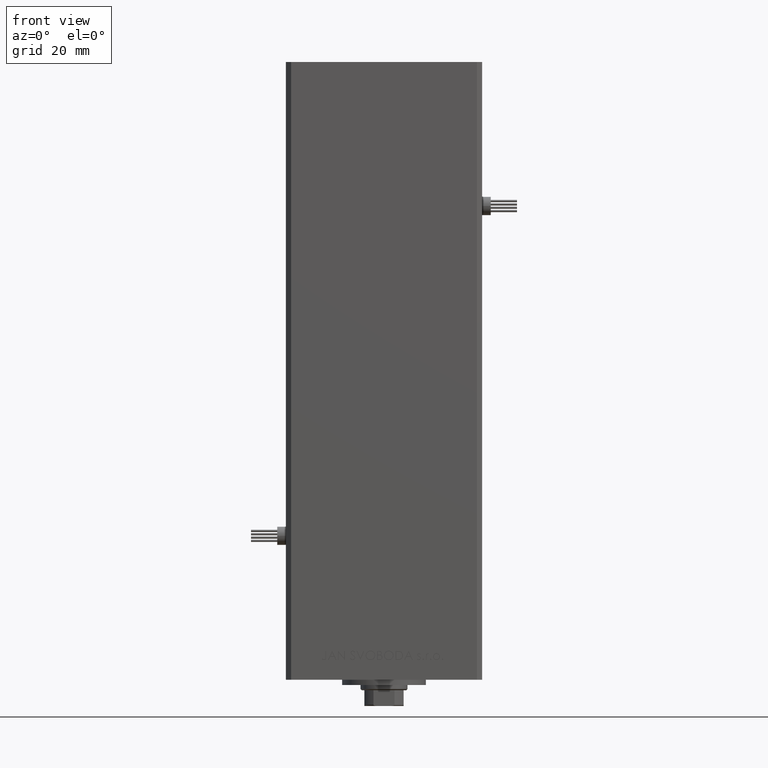
[diagram: clean part render]
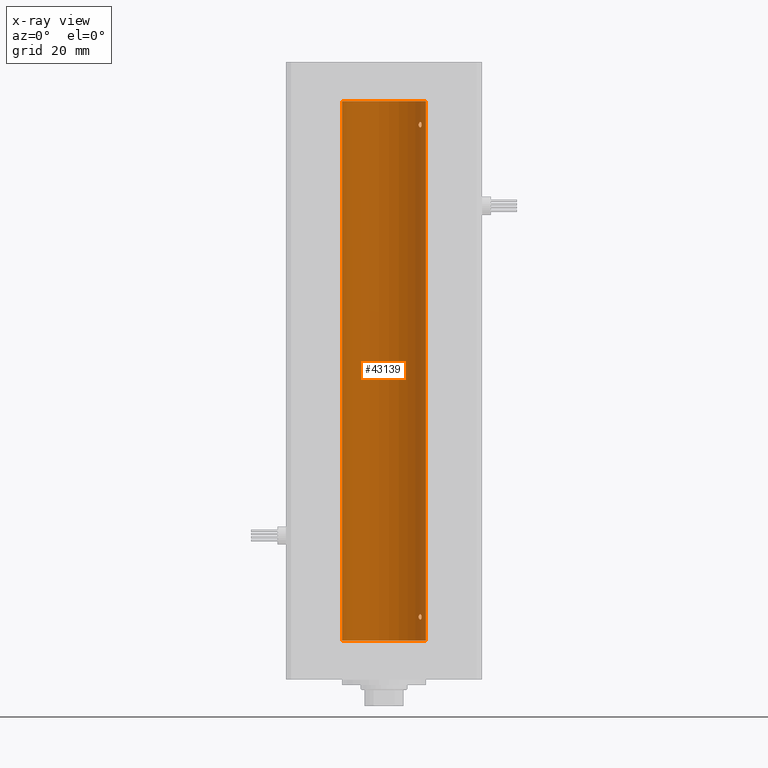
[diagram: x-ray — body ghosted, one internal face saturated and labeled with its STEP entity id]
A machine part, front view, then the same camera in x-ray: the body is ghosted and one INTERNAL B-rep face — a face not visible from any outside direction — is saturated and labeled: STEP entity #43139.
In plain terms, the highlighted cylindrical surface (partial cylindrical patch) has radius 16 mm, axis along (-0, -0, -1).
Its self-contained STEP definition (entity closure, byte-faithful):
#55 = CARTESIAN_POINT ( 'NONE',  ( 16.00000000000000000, 1.959434878635765131E-15, 0.000000000000000000 ) ) ;
#404 = CARTESIAN_POINT ( 'NONE',  ( 14.31615587311060445, 7.145052533203043232, 8.462698705274526390 ) ) ;
#1209 = FACE_BOUND ( 'NONE', #42346, .T. ) ;
#1561 = AXIS2_PLACEMENT_3D ( 'NONE', #18261, #51052, #18780 ) ;
#1714 = B_SPLINE_CURVE_WITH_KNOTS ( 'NONE', 3,
 ( #40359, #44855, #48561, #9146, #28485, #16820, #32965, #20255, #45130, #21065, #37193, #36397, #24496, #17087 ),
 .UNSPECIFIED., .F., .F.,
 ( 4, 2, 2, 2, 2, 2, 4 ),
 ( 0.003377516961122441295, 0.003798778705083836419, 0.004220040449045231977, 0.005062563936968072532, 0.005905087424890913088, 0.006326349168852335100, 0.006747610912813756245 ),
 .UNSPECIFIED. ) ;
#2257 = CARTESIAN_POINT ( 'NONE',  ( 13.22875655532295447, 8.999999999999996447, 196.9999999999999432 ) ) ;
#2437 = VERTEX_POINT ( 'NONE', #29260 ) ;
#2468 = CARTESIAN_POINT ( 'NONE',  ( 13.92009581174527355, 7.889943515799701323, 195.9984609092137759 ) ) ;
#3027 = ORIENTED_EDGE ( 'NONE', *, *, #30645, .T. ) ;
#3412 = ORIENTED_EDGE ( 'NONE', *, *, #9447, .F. ) ;
#4275 = CARTESIAN_POINT ( 'NONE',  ( 14.27574973237574874, 7.225997637813491359, 196.3530782107463324 ) ) ;
#4353 = CARTESIAN_POINT ( 'NONE',  ( 14.38749456993875953, 6.999999999998769873, 8.999999999999467093 ) ) ;
#4964 = VERTEX_POINT ( 'NONE', #34005 ) ;
#6119 = CARTESIAN_POINT ( 'NONE',  ( 14.38749456993835807, 6.999999999999894307, 9.141106977037484427 ) ) ;
#6761 = CARTESIAN_POINT ( 'NONE',  ( 13.32443414199768839, 8.857985377928104143, 8.468605830316136007 ) ) ;
#6893 = CARTESIAN_POINT ( 'NONE',  ( 13.25022586032984329, 8.968609469449802418, 9.283289638962903823 ) ) ;
#6912 = VECTOR ( 'NONE', #40449, 1000.000000000000000 ) ;
#7406 = CARTESIAN_POINT ( 'NONE',  ( 13.32447566991143439, 8.857922402414480700, 9.531438119903825168 ) ) ;
#7463 = CARTESIAN_POINT ( 'NONE',  ( 14.38749456993829057, 7.000000000000029310, 196.9292911095188003 ) ) ;
#8289 = VERTEX_POINT ( 'NONE', #26202 ) ;
#8587 = CARTESIAN_POINT ( 'NONE',  ( 13.98799506618804855, 7.768796316246572964, 8.018907818619863903 ) ) ;
#8857 = CARTESIAN_POINT ( 'NONE',  ( 13.77746685470184040, 8.136441676695669756, 8.001713142955473757 ) ) ;
#9146 = CARTESIAN_POINT ( 'NONE',  ( 14.31678893103185679, 7.143775209822727845, 197.5347800480706155 ) ) ;
#9447 = EDGE_CURVE ( 'NONE', #36479, #2437, #26099, .T. ) ;
#9669 = FACE_OUTER_BOUND ( 'NONE', #44934, .T. ) ;
#9927 = DIRECTION ( 'NONE',  ( -1.000000000000000000, 0.000000000000000000, 0.000000000000000000 ) ) ;
#10860 = CARTESIAN_POINT ( 'NONE',  ( 13.22875655532295625, 9.000000000000000000, 9.142659515501296852 ) ) ;
#10996 = CARTESIAN_POINT ( 'NONE',  ( 13.22875655532295447, 8.999999999999998224, 8.999999999999994671 ) ) ;
#12563 = CARTESIAN_POINT ( 'NONE',  ( 13.49787029139620920, 8.591848682074017418, 8.183814587142569152 ) ) ;
#12829 = CARTESIAN_POINT ( 'NONE',  ( 14.35867515080208356, 7.058999333127636611, 8.654421198538130966 ) ) ;
#14465 = CARTESIAN_POINT ( 'NONE',  ( -16.00000000000000000, 0.000000000000000000, 206.0000000000000000 ) ) ;
#16129 = EDGE_CURVE ( 'NONE', #4964, #36479, #28050, .T. ) ;
#16622 = AXIS2_PLACEMENT_3D ( 'NONE', #45252, #33603, #16940 ) ;
#16820 = CARTESIAN_POINT ( 'NONE',  ( 14.12440581436492515, 7.519967855344591001, 197.9168456675479604 ) ) ;
#16940 = DIRECTION ( 'NONE',  ( 1.000000000000000000, 0.000000000000000000, 0.000000000000000000 ) ) ;
#17079 = CYLINDRICAL_SURFACE ( 'NONE', #44045, 16.00000000000000000 ) ;
#17087 = CARTESIAN_POINT ( 'NONE',  ( 13.22875655532295447, 8.999999999999996447, 196.9999999999999432 ) ) ;
#17455 = CIRCLE ( 'NONE', #16622, 16.00000000000000000 ) ;
#17864 = CARTESIAN_POINT ( 'NONE',  ( 0.000000000000000000, 0.000000000000000000, 206.0000000000000000 ) ) ;
#18261 = CARTESIAN_POINT ( 'NONE',  ( 0.000000000000000000, 0.000000000000000000, 0.000000000000000000 ) ) ;
#18345 = CARTESIAN_POINT ( 'NONE',  ( 13.37714181818050641, 8.778635597591444295, 196.3595547667462711 ) ) ;
#18599 = CARTESIAN_POINT ( 'NONE',  ( 13.98799506618805211, 7.768796316246563194, 196.0189078186198515 ) ) ;
#18780 = DIRECTION ( 'NONE',  ( 1.000000000000000000, 0.000000000000000000, 0.000000000000000000 ) ) ;
#19582 = CARTESIAN_POINT ( 'NONE',  ( 13.98853479819183043, 7.771757428685174496, 10.00365939203466681 ) ) ;
#19980 = CARTESIAN_POINT ( 'NONE',  ( 14.38374727663542707, 7.007716049903074840, 8.857607929436484895 ) ) ;
#20177 = CARTESIAN_POINT ( 'NONE',  ( 14.38749456993875953, 6.999999999998769873, 8.999999999999467093 ) ) ;
#20255 = CARTESIAN_POINT ( 'NONE',  ( 13.70635209652259334, 8.259251269739747769, 197.9961002086728001 ) ) ;
#20422 = CARTESIAN_POINT ( 'NONE',  ( 14.31615587311060978, 7.145052533203036127, 196.4626987052745903 ) ) ;
#21039 = CARTESIAN_POINT ( 'NONE',  ( 14.17516445690067428, 7.421373518623910037, 8.173695665549439937 ) ) ;
#21065 = CARTESIAN_POINT ( 'NONE',  ( 13.37722806521492203, 8.778496895713763237, 197.6404922157021247 ) ) ;
#21155 = CARTESIAN_POINT ( 'NONE',  ( 16.00000000000000000, 1.959434878635765131E-15, 206.0000000000000000 ) ) ;
#21315 = ORIENTED_EDGE ( 'NONE', *, *, #16129, .F. ) ;
#21348 = VERTEX_POINT ( 'NONE', #14465 ) ;
#22278 = CARTESIAN_POINT ( 'NONE',  ( 14.37260515874679534, 7.030802976542521954, 9.282431798581109561 ) ) ;
#22340 = CARTESIAN_POINT ( 'NONE',  ( 13.32443414199769194, 8.857985377928093484, 196.4686058303161076 ) ) ;
#22536 = CARTESIAN_POINT ( 'NONE',  ( 14.12440581436493225, 7.519967855344579455, 9.916845667547992349 ) ) ;
#22595 = CARTESIAN_POINT ( 'NONE',  ( 13.70633586603035781, 8.255576010093792050, 196.0253286105014752 ) ) ;
#23123 = CARTESIAN_POINT ( 'NONE',  ( 13.22875655532295802, 8.999999999999998224, 196.8570262609357258 ) ) ;
#23380 = CARTESIAN_POINT ( 'NONE',  ( 14.17516445690067250, 7.421373518623910037, 196.1736956655493884 ) ) ;
#24396 = CARTESIAN_POINT ( 'NONE',  ( 14.36932461189096877, 7.037242368448795915, 196.7207139776694191 ) ) ;
#24496 = CARTESIAN_POINT ( 'NONE',  ( 13.22875655532295092, 8.999999999999994671, 197.1426595155012365 ) ) ;
#25348 = CARTESIAN_POINT ( 'NONE',  ( -16.00000000000000000, 0.000000000000000000, 206.0000000000000000 ) ) ;
#25453 = CARTESIAN_POINT ( 'NONE',  ( 14.38749456993875953, 6.999999999998769873, 8.999999999999467093 ) ) ;
#25457 = B_SPLINE_CURVE_WITH_KNOTS ( 'NONE', 3,
 ( #38972, #23123, #42685, #22340, #18345, #30543, #46647, #22595, #38708, #2468, #18599, #40513, #23380, #4275, #20422, #51914, #24396, #39493, #7463, #47420 ),
 .UNSPECIFIED., .F., .F.,
 ( 4, 2, 2, 2, 2, 2, 2, 2, 2, 4 ),
 ( 2.818592028051833686E-17, 0.0004221896201403299359, 0.0008443792402806316825, 0.001266568860420933538, 0.001688758480561235176, 0.002110948100701536597, 0.002533137720841838886, 0.002955327340982140307, 0.003166422151052290801, 0.003377516961122441295 ),
 .UNSPECIFIED. ) ;
#25880 = LINE ( 'NONE', #25348, #42339 ) ;
#25981 = B_SPLINE_CURVE_WITH_KNOTS ( 'NONE', 3,
 ( #10996, #51220, #27161, #6761, #36650, #12563, #45106, #32153, #8857, #52243, #8587, #32681, #21039, #33207, #404, #12829, #32426, #19980, #29255, #4353 ),
 .UNSPECIFIED., .F., .F.,
 ( 4, 2, 2, 2, 2, 2, 2, 2, 2, 4 ),
 ( 0.000000000000000000, 0.0004221896201403055413, 0.0008443792402806110826, 0.001266568860420916624, 0.001688758480561222165, 0.002110948100701527490, 0.002533137720841833248, 0.002955327340982138572, 0.003166422151052288633, 0.003377516961122438259 ),
 .UNSPECIFIED. ) ;
#26099 = CIRCLE ( 'NONE', #1561, 16.00000000000000000 ) ;
#26202 = CARTESIAN_POINT ( 'NONE',  ( 13.22875655532295447, 8.999999999999998224, 8.999999999999994671 ) ) ;
#26522 = CARTESIAN_POINT ( 'NONE',  ( 14.27601081693604712, 7.225489892961965310, 9.646446674983275571 ) ) ;
#26799 = EDGE_CURVE ( 'NONE', #8289, #27691, #25981, .T. ) ;
#27121 = ORIENTED_EDGE ( 'NONE', *, *, #49550, .F. ) ;
#27161 = CARTESIAN_POINT ( 'NONE',  ( 13.25010819131475159, 8.968783812673564171, 8.717198662283735189 ) ) ;
#27290 = CARTESIAN_POINT ( 'NONE',  ( 13.37722806521492025, 8.778496895713756132, 9.640492215702138878 ) ) ;
#27691 = VERTEX_POINT ( 'NONE', #20177 ) ;
#28050 = LINE ( 'NONE', #21155, #6912 ) ;
#28485 = CARTESIAN_POINT ( 'NONE',  ( 14.27601081693604179, 7.225489892961972416, 197.6464466749832525 ) ) ;
#29255 = CARTESIAN_POINT ( 'NONE',  ( 14.38749456993828879, 7.000000000000026645, 8.929291109518763037 ) ) ;
#29260 = CARTESIAN_POINT ( 'NONE',  ( -16.00000000000000000, 0.000000000000000000, 0.000000000000000000 ) ) ;
#30543 = CARTESIAN_POINT ( 'NONE',  ( 13.49787029139622696, 8.591848682073997878, 196.1838145871425638 ) ) ;
#30645 = EDGE_CURVE ( 'NONE', #4964, #21348, #17455, .T. ) ;
#31234 = EDGE_CURVE ( 'NONE', #48759, #43275, #1714, .T. ) ;
#32153 = CARTESIAN_POINT ( 'NONE',  ( 13.70633586603034715, 8.255576010093811590, 8.025328610501505366 ) ) ;
#32426 = CARTESIAN_POINT ( 'NONE',  ( 14.36932461189096877, 7.037242368448794139, 8.720713977669424466 ) ) ;
#32588 = CARTESIAN_POINT ( 'NONE',  ( 14.38749456993875775, 6.999999999998771649, 196.9999999999994600 ) ) ;
#32681 = CARTESIAN_POINT ( 'NONE',  ( 14.11701305531884287, 7.531808851198022126, 8.107366783090686368 ) ) ;
#32965 = CARTESIAN_POINT ( 'NONE',  ( 13.98853479819182866, 7.771757428685186042, 198.0036593920346775 ) ) ;
#33207 = CARTESIAN_POINT ( 'NONE',  ( 14.27574973237574696, 7.225997637813494023, 8.353078210746339494 ) ) ;
#33603 = DIRECTION ( 'NONE',  ( -0.000000000000000000, 0.000000000000000000, 1.000000000000000000 ) ) ;
#34004 = FACE_BOUND ( 'NONE', #52117, .T. ) ;
#34005 = CARTESIAN_POINT ( 'NONE',  ( 16.00000000000000000, 1.959434878635765131E-15, 206.0000000000000000 ) ) ;
#34515 = ORIENTED_EDGE ( 'NONE', *, *, #42719, .T. ) ;
#34776 = ORIENTED_EDGE ( 'NONE', *, *, #31234, .F. ) ;
#34929 = ORIENTED_EDGE ( 'NONE', *, *, #42084, .F. ) ;
#36397 = CARTESIAN_POINT ( 'NONE',  ( 13.25022586032983618, 8.968609469449805971, 197.2832896389629127 ) ) ;
#36436 = ORIENTED_EDGE ( 'NONE', *, *, #26799, .F. ) ;
#36479 = VERTEX_POINT ( 'NONE', #55 ) ;
#36650 = CARTESIAN_POINT ( 'NONE',  ( 13.37714181818049575, 8.778635597591465611, 8.359554766746297716 ) ) ;
#37193 = CARTESIAN_POINT ( 'NONE',  ( 13.32447566991143617, 8.857922402414489582, 197.5314381199037541 ) ) ;
#38708 = CARTESIAN_POINT ( 'NONE',  ( 13.77746685470184929, 8.136441676695655545, 196.0017131429554524 ) ) ;
#38972 = CARTESIAN_POINT ( 'NONE',  ( 13.22875655532295447, 8.999999999999996447, 196.9999999999999432 ) ) ;
#39493 = CARTESIAN_POINT ( 'NONE',  ( 14.38374727663542707, 7.007716049903077504, 196.8576079294364547 ) ) ;
#40359 = CARTESIAN_POINT ( 'NONE',  ( 14.38749456993875775, 6.999999999998771649, 196.9999999999994600 ) ) ;
#40449 = DIRECTION ( 'NONE',  ( -0.000000000000000000, -0.000000000000000000, -1.000000000000000000 ) ) ;
#40513 = CARTESIAN_POINT ( 'NONE',  ( 14.11701305531884465, 7.531808851198014132, 196.1073667830906402 ) ) ;
#41348 = B_SPLINE_CURVE_WITH_KNOTS ( 'NONE', 3,
 ( #25453, #6119, #22278, #41579, #26522, #22536, #19582, #51080, #52112, #27290, #7406, #6893, #10860, #42880 ),
 .UNSPECIFIED., .F., .F.,
 ( 4, 2, 2, 2, 2, 2, 4 ),
 ( 0.003377516961122438259, 0.003798778705083848996, 0.004220040449045259733, 0.005062563936968083808, 0.005905087424890908751, 0.006326349168852319488, 0.006747610912813730225 ),
 .UNSPECIFIED. ) ;
#41579 = CARTESIAN_POINT ( 'NONE',  ( 14.31678893103186390, 7.143775209822729622, 9.534780048070684799 ) ) ;
#41739 = DIRECTION ( 'NONE',  ( -0.000000000000000000, -0.000000000000000000, -1.000000000000000000 ) ) ;
#42084 = EDGE_CURVE ( 'NONE', #27691, #8289, #41348, .T. ) ;
#42339 = VECTOR ( 'NONE', #41739, 1000.000000000000000 ) ;
#42346 = EDGE_LOOP ( 'NONE', ( #36436, #34929 ) ) ;
#42685 = CARTESIAN_POINT ( 'NONE',  ( 13.25010819131476048, 8.968783812673557065, 196.7171986622837210 ) ) ;
#42719 = EDGE_CURVE ( 'NONE', #21348, #2437, #25880, .T. ) ;
#42880 = CARTESIAN_POINT ( 'NONE',  ( 13.22875655532295447, 8.999999999999998224, 8.999999999999994671 ) ) ;
#43139 = ADVANCED_FACE ( 'NONE', ( #9669, #34004, #1209 ), #17079, .F. ) ;
#43275 = VERTEX_POINT ( 'NONE', #2257 ) ;
#44045 = AXIS2_PLACEMENT_3D ( 'NONE', #17864, #49345, #9927 ) ;
#44855 = CARTESIAN_POINT ( 'NONE',  ( 14.38749456993835807, 6.999999999999900524, 197.1411069770375093 ) ) ;
#44934 = EDGE_LOOP ( 'NONE', ( #21315, #3027, #34515, #3412 ) ) ;
#45106 = CARTESIAN_POINT ( 'NONE',  ( 13.56526576050683452, 8.485384079562178883, 8.116990538131117816 ) ) ;
#45130 = CARTESIAN_POINT ( 'NONE',  ( 13.55739033881264710, 8.499771822136690247, 197.9029833364132855 ) ) ;
#45252 = CARTESIAN_POINT ( 'NONE',  ( 0.000000000000000000, 0.000000000000000000, 206.0000000000000000 ) ) ;
#46647 = CARTESIAN_POINT ( 'NONE',  ( 13.56526576050684518, 8.485384079562161119, 196.1169905381311196 ) ) ;
#47420 = CARTESIAN_POINT ( 'NONE',  ( 14.38749456993875775, 6.999999999998771649, 196.9999999999994600 ) ) ;
#48561 = CARTESIAN_POINT ( 'NONE',  ( 14.37260515874679179, 7.030802976542521954, 197.2824317985810865 ) ) ;
#48759 = VERTEX_POINT ( 'NONE', #32588 ) ;
#49345 = DIRECTION ( 'NONE',  ( -0.000000000000000000, -0.000000000000000000, -1.000000000000000000 ) ) ;
#49550 = EDGE_CURVE ( 'NONE', #43275, #48759, #25457, .T. ) ;
#51052 = DIRECTION ( 'NONE',  ( -0.000000000000000000, 0.000000000000000000, 1.000000000000000000 ) ) ;
#51080 = CARTESIAN_POINT ( 'NONE',  ( 13.70635209652260222, 8.259251269739738888, 9.996100208672867637 ) ) ;
#51220 = CARTESIAN_POINT ( 'NONE',  ( 13.22875655532296157, 9.000000000000000000, 8.857026260935734641 ) ) ;
#51914 = CARTESIAN_POINT ( 'NONE',  ( 14.35867515080208712, 7.058999333127631282, 196.6544211985381594 ) ) ;
#52112 = CARTESIAN_POINT ( 'NONE',  ( 13.55739033881265065, 8.499771822136686694, 9.902983336413296200 ) ) ;
#52117 = EDGE_LOOP ( 'NONE', ( #27121, #34776 ) ) ;
#52243 = CARTESIAN_POINT ( 'NONE',  ( 13.92009581174526822, 7.889943515799717311, 7.998460909213807035 ) ) ;